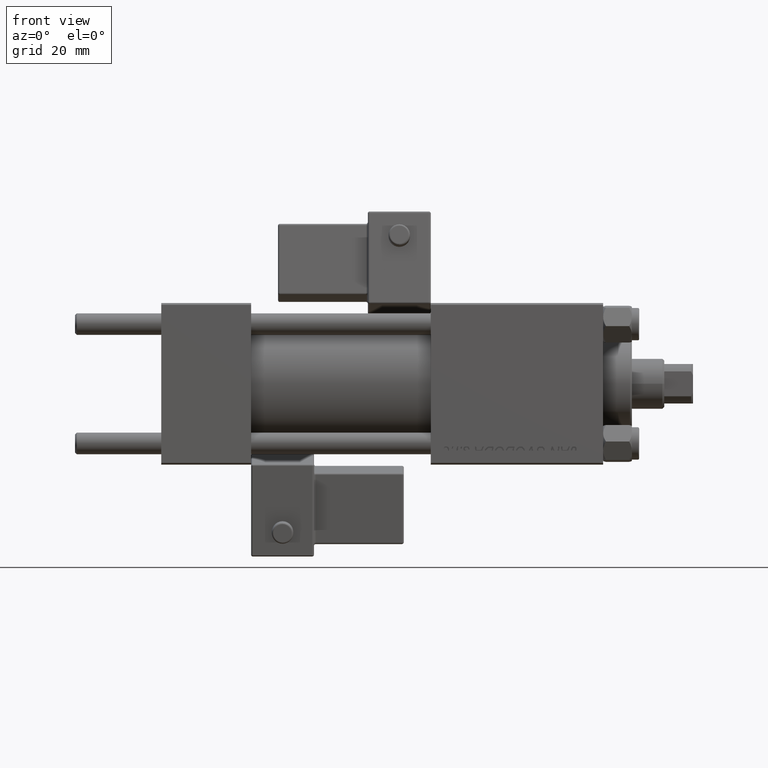
[diagram: clean part render]
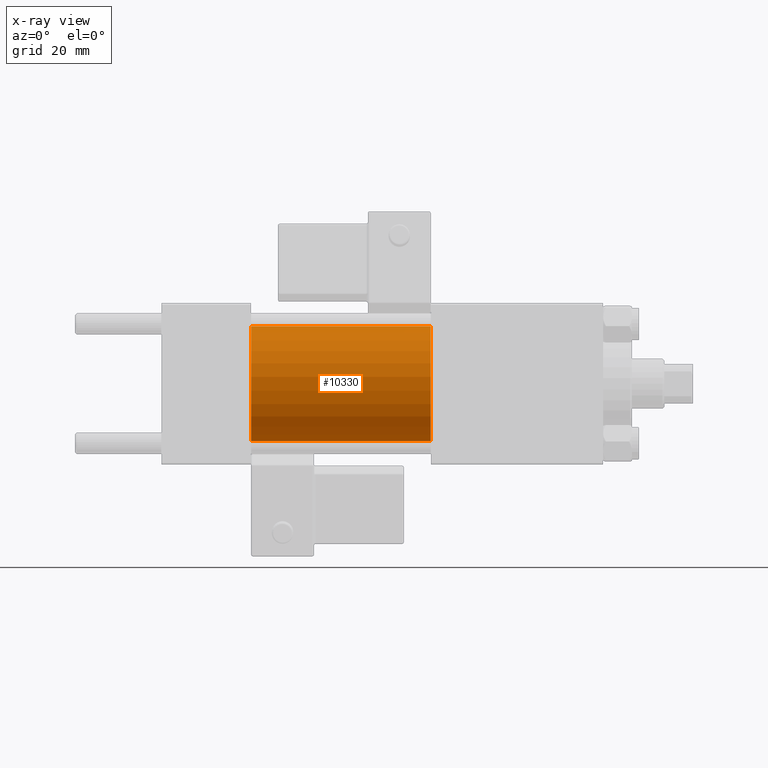
[diagram: x-ray — body ghosted, one internal face saturated and labeled with its STEP entity id]
A machine part, front view, then the same camera in x-ray: the body is ghosted and one INTERNAL B-rep face — a face not visible from any outside direction — is saturated and labeled: STEP entity #10330.
In plain terms, the highlighted cylindrical surface (partial cylindrical patch) has radius 16 mm, axis along (-1, -0, -0).
Its self-contained STEP definition (entity closure, byte-faithful):
#104 = CARTESIAN_POINT ( 'NONE',  ( 75.00000000000001421, 1.959434878635765131E-15, -16.00000000000000000 ) ) ;
#768 = CARTESIAN_POINT ( 'NONE',  ( 75.00000000000001421, 0.000000000000000000, 0.000000000000000000 ) ) ;
#1795 = VECTOR ( 'NONE', #44817, 1000.000000000000000 ) ;
#2627 = CARTESIAN_POINT ( 'NONE',  ( 75.00000000000001421, 1.959434878635765131E-15, -16.00000000000000000 ) ) ;
#3727 = ORIENTED_EDGE ( 'NONE', *, *, #21435, .T. ) ;
#6087 = LINE ( 'NONE', #2627, #45246 ) ;
#7710 = DIRECTION ( 'NONE',  ( -1.000000000000000000, -0.000000000000000000, -0.000000000000000000 ) ) ;
#10330 = ADVANCED_FACE ( 'NONE', ( #52129 ), #24618, .F. ) ;
#10865 = DIRECTION ( 'NONE',  ( 0.000000000000000000, 0.000000000000000000, -1.000000000000000000 ) ) ;
#11117 = DIRECTION ( 'NONE',  ( 1.000000000000000000, 0.000000000000000000, 0.000000000000000000 ) ) ;
#13686 = ORIENTED_EDGE ( 'NONE', *, *, #21959, .F. ) ;
#13934 = ORIENTED_EDGE ( 'NONE', *, *, #16983, .F. ) ;
#15981 = AXIS2_PLACEMENT_3D ( 'NONE', #51582, #11117, #10865 ) ;
#16268 = VERTEX_POINT ( 'NONE', #50154 ) ;
#16898 = DIRECTION ( 'NONE',  ( 1.000000000000000000, 0.000000000000000000, 0.000000000000000000 ) ) ;
#16983 = EDGE_CURVE ( 'NONE', #39330, #16268, #31222, .T. ) ;
#21157 = VERTEX_POINT ( 'NONE', #104 ) ;
#21435 = EDGE_CURVE ( 'NONE', #48881, #21157, #51630, .T. ) ;
#21959 = EDGE_CURVE ( 'NONE', #48881, #39330, #28712, .T. ) ;
#23834 = DIRECTION ( 'NONE',  ( 0.000000000000000000, 0.000000000000000000, 1.000000000000000000 ) ) ;
#24340 = CARTESIAN_POINT ( 'NONE',  ( 25.00000000000000000, 0.000000000000000000, 16.00000000000000000 ) ) ;
#24618 = CYLINDRICAL_SURFACE ( 'NONE', #29991, 16.00000000000000000 ) ;
#25778 = CARTESIAN_POINT ( 'NONE',  ( 75.00000000000001421, 0.000000000000000000, 16.00000000000000000 ) ) ;
#26482 = ORIENTED_EDGE ( 'NONE', *, *, #36231, .T. ) ;
#28712 = LINE ( 'NONE', #25778, #1795 ) ;
#29097 = DIRECTION ( 'NONE',  ( 0.000000000000000000, 0.000000000000000000, -1.000000000000000000 ) ) ;
#29454 = CARTESIAN_POINT ( 'NONE',  ( 75.00000000000001421, 0.000000000000000000, 16.00000000000000000 ) ) ;
#29991 = AXIS2_PLACEMENT_3D ( 'NONE', #51862, #7710, #23834 ) ;
#31222 = CIRCLE ( 'NONE', #15981, 16.00000000000000000 ) ;
#33889 = AXIS2_PLACEMENT_3D ( 'NONE', #768, #16898, #29097 ) ;
#36231 = EDGE_CURVE ( 'NONE', #21157, #16268, #6087, .T. ) ;
#37906 = EDGE_LOOP ( 'NONE', ( #3727, #26482, #13934, #13686 ) ) ;
#38865 = DIRECTION ( 'NONE',  ( -1.000000000000000000, -0.000000000000000000, -0.000000000000000000 ) ) ;
#39330 = VERTEX_POINT ( 'NONE', #24340 ) ;
#44817 = DIRECTION ( 'NONE',  ( -1.000000000000000000, -0.000000000000000000, -0.000000000000000000 ) ) ;
#45246 = VECTOR ( 'NONE', #38865, 1000.000000000000000 ) ;
#48881 = VERTEX_POINT ( 'NONE', #29454 ) ;
#50154 = CARTESIAN_POINT ( 'NONE',  ( 25.00000000000000000, 1.959434878635765131E-15, -16.00000000000000000 ) ) ;
#51582 = CARTESIAN_POINT ( 'NONE',  ( 25.00000000000000000, 0.000000000000000000, 0.000000000000000000 ) ) ;
#51630 = CIRCLE ( 'NONE', #33889, 16.00000000000000000 ) ;
#51862 = CARTESIAN_POINT ( 'NONE',  ( 75.00000000000001421, 0.000000000000000000, 0.000000000000000000 ) ) ;
#52129 = FACE_OUTER_BOUND ( 'NONE', #37906, .T. ) ;